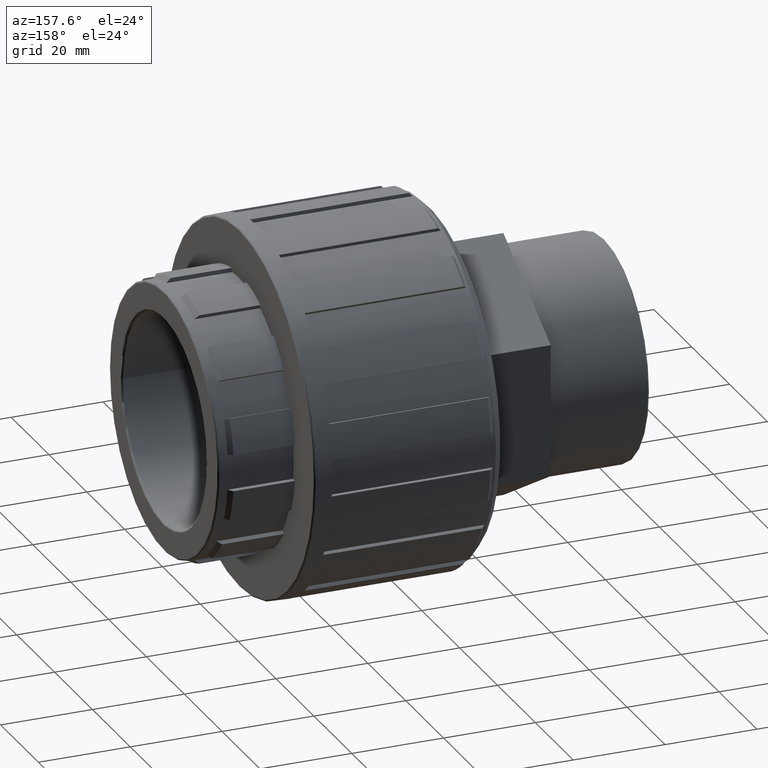
[diagram: clean part render]
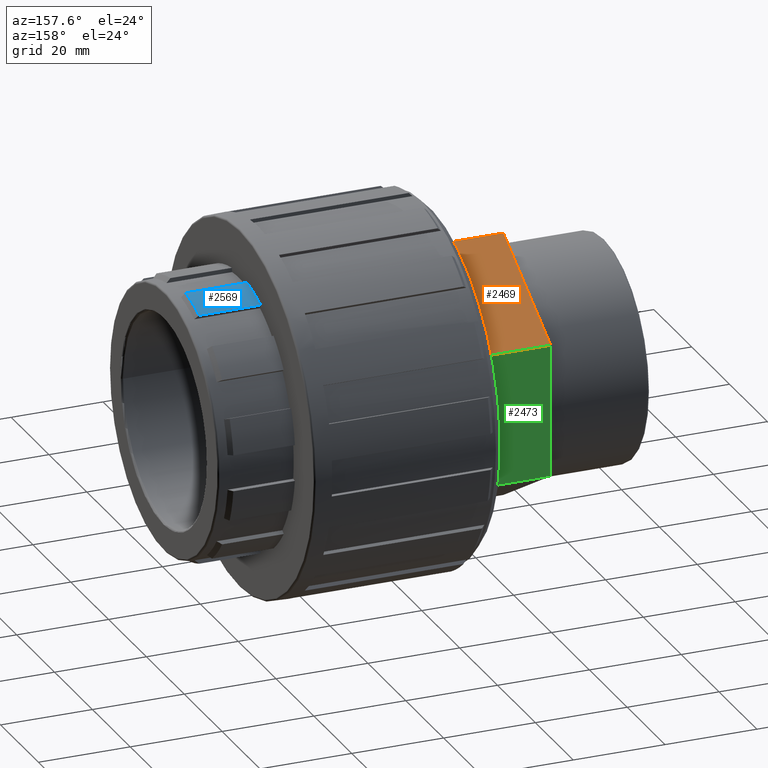
[diagram: same view with three faces highlighted in distinct colors, each labeled with its STEP entity id]
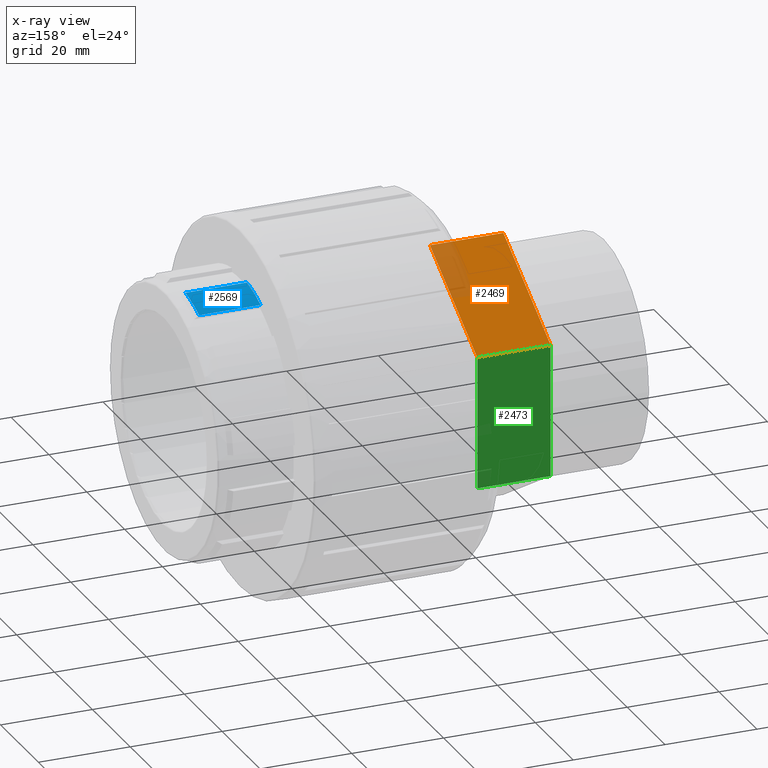
[diagram: x-ray of the same camera — body ghosted, the three highlighted faces saturated]
A machine part, auxiliary view with three faces highlighted in distinct colors.
The next image is the same camera in x-ray (body ghosted, the three faces saturated) — at least one of them is partly hidden behind the body in this view.
Their STEP definitions:

[orange] entity #2469 — the highlighted planar face has unit normal (-0, 0.5, 0.866).
#223=FACE_OUTER_BOUND('',#363,.T.);
#363=EDGE_LOOP('',(#1640,#1641,#1642,#1643));
#525=LINE('',#3673,#767);
#528=LINE('',#3679,#770);
#529=LINE('',#3681,#771);
#530=LINE('',#3682,#772);
#767=VECTOR('',#2886,16.);
#770=VECTOR('',#2891,28.8675134594813);
#771=VECTOR('',#2892,16.);
#772=VECTOR('',#2893,28.8675134594813);
#1008=VERTEX_POINT('',#3669);
#1010=VERTEX_POINT('',#3672);
#1012=VERTEX_POINT('',#3678);
#1013=VERTEX_POINT('',#3680);
#1264=EDGE_CURVE('',#1010,#1008,#525,.T.);
#1267=EDGE_CURVE('',#1012,#1008,#528,.T.);
#1268=EDGE_CURVE('',#1013,#1012,#529,.T.);
#1269=EDGE_CURVE('',#1013,#1010,#530,.T.);
#1640=ORIENTED_EDGE('',*,*,#1267,.F.);
#1641=ORIENTED_EDGE('',*,*,#1268,.F.);
#1642=ORIENTED_EDGE('',*,*,#1269,.T.);
#1643=ORIENTED_EDGE('',*,*,#1264,.T.);
#2383=PLANE('',#2611);
#2469=ADVANCED_FACE('',(#223),#2383,.T.);
#2611=AXIS2_PLACEMENT_3D('',#3677,#2889,#2890);
#2886=DIRECTION('',(1.,1.85037170770859E-16,0.));
#2889=DIRECTION('center_axis',(-9.25185853854296E-17,0.500000000000001,
0.866025403784438));
#2890=DIRECTION('ref_axis',(0.,-0.866025403784438,0.500000000000001));
#2891=DIRECTION('',(1.59086285808736E-16,-0.866025403784438,0.500000000000001));
#2892=DIRECTION('',(1.,1.85037170770859E-16,0.));
#2893=DIRECTION('',(1.59086285808736E-16,-0.866025403784438,0.500000000000001));
#3669=CARTESIAN_POINT('',(-10.,4.78354113859015E-14,28.8675134594813));
#3672=CARTESIAN_POINT('',(-26.,4.48748166535677E-14,28.8675134594813));
#3673=CARTESIAN_POINT('',(-26.,4.48748166535677E-14,28.8675134594813));
#3677=CARTESIAN_POINT('Origin',(-26.,25.,14.4337567297406));
#3678=CARTESIAN_POINT('',(-10.,25.,14.4337567297406));
#3679=CARTESIAN_POINT('',(-10.,9.37500000000005,23.4548546858285));
#3680=CARTESIAN_POINT('',(-26.,25.,14.4337567297406));
#3681=CARTESIAN_POINT('',(-26.,25.,14.4337567297406));
#3682=CARTESIAN_POINT('',(-26.,25.,14.4337567297406));

[blue] entity #2569 — the highlighted cylindrical surface (partial cylindrical patch) has radius 29.5977 mm, axis along (-1, -0, 0).
#82=CYLINDRICAL_SURFACE('',#2795,29.5977);
#175=CIRCLE('',#2796,29.5977);
#176=CIRCLE('',#2797,29.5977);
#323=FACE_OUTER_BOUND('',#464,.T.);
#464=EDGE_LOOP('',(#2101,#2102,#2103,#2104));
#683=LINE('',#4120,#925);
#685=LINE('',#4126,#927);
#925=VECTOR('',#3316,13.4031);
#927=VECTOR('',#3320,13.4031);
#1161=VERTEX_POINT('',#4114);
#1163=VERTEX_POINT('',#4118);
#1164=VERTEX_POINT('',#4122);
#1166=VERTEX_POINT('',#4125);
#1486=EDGE_CURVE('',#1161,#1163,#683,.T.);
#1488=EDGE_CURVE('',#1166,#1164,#685,.T.);
#1581=EDGE_CURVE('',#1166,#1163,#175,.T.);
#1582=EDGE_CURVE('',#1161,#1164,#176,.T.);
#2101=ORIENTED_EDGE('',*,*,#1486,.T.);
#2102=ORIENTED_EDGE('',*,*,#1581,.F.);
#2103=ORIENTED_EDGE('',*,*,#1488,.T.);
#2104=ORIENTED_EDGE('',*,*,#1582,.F.);
#2569=ADVANCED_FACE('',(#323),#82,.T.);
#2795=AXIS2_PLACEMENT_3D('',#4319,#3487,#3488);
#2796=AXIS2_PLACEMENT_3D('',#4320,#3489,#3490);
#2797=AXIS2_PLACEMENT_3D('',#4321,#3491,#3492);
#3316=DIRECTION('',(-1.,-1.83697019872103E-16,0.));
#3320=DIRECTION('',(1.,1.83697019872103E-16,0.));
#3487=DIRECTION('center_axis',(-1.,-1.83697019872103E-16,0.));
#3488=DIRECTION('ref_axis',(1.85799723803972E-16,-1.,0.));
#3489=DIRECTION('center_axis',(-1.,-1.83697019872103E-16,0.));
#3490=DIRECTION('ref_axis',(0.,0.,1.));
#3491=DIRECTION('center_axis',(1.,1.83697019872103E-16,0.));
#3492=DIRECTION('ref_axis',(1.85799723803972E-16,-1.,0.));
#4114=CARTESIAN_POINT('',(44.9031,11.2456694526033,27.3780708570342));
#4118=CARTESIAN_POINT('',(31.5,11.2456694526033,27.3780708570342));
#4120=CARTESIAN_POINT('',(38.65,11.2456694526033,27.3780708570342));
#4122=CARTESIAN_POINT('',(44.9031,3.95000000000001,29.3329395951037));
#4125=CARTESIAN_POINT('',(31.5,3.95000000000001,29.3329395951037));
#4126=CARTESIAN_POINT('',(38.65,3.95000000000001,29.3329395951037));
#4319=CARTESIAN_POINT('Origin',(38.65,1.59173467719177E-14,0.));
#4320=CARTESIAN_POINT('Origin',(31.5,1.46039130798322E-14,0.));
#4321=CARTESIAN_POINT('Origin',(44.9031,1.706602260688E-14,0.));

[green] entity #2473 — the highlighted planar face has unit normal (-0, 1, -0).
#227=FACE_OUTER_BOUND('',#367,.T.);
#367=EDGE_LOOP('',(#1656,#1657,#1658,#1659));
#529=LINE('',#3681,#771);
#534=LINE('',#3691,#776);
#540=LINE('',#3702,#782);
#541=LINE('',#3703,#783);
#771=VECTOR('',#2892,16.);
#776=VECTOR('',#2899,16.);
#782=VECTOR('',#2911,28.8675134594813);
#783=VECTOR('',#2912,28.8675134594813);
#1012=VERTEX_POINT('',#3678);
#1013=VERTEX_POINT('',#3680);
#1015=VERTEX_POINT('',#3685);
#1017=VERTEX_POINT('',#3689);
#1268=EDGE_CURVE('',#1013,#1012,#529,.T.);
#1273=EDGE_CURVE('',#1017,#1015,#534,.T.);
#1279=EDGE_CURVE('',#1015,#1012,#540,.T.);
#1280=EDGE_CURVE('',#1017,#1013,#541,.T.);
#1656=ORIENTED_EDGE('',*,*,#1279,.F.);
#1657=ORIENTED_EDGE('',*,*,#1273,.F.);
#1658=ORIENTED_EDGE('',*,*,#1280,.T.);
#1659=ORIENTED_EDGE('',*,*,#1268,.T.);
#2387=PLANE('',#2615);
#2473=ADVANCED_FACE('',(#227),#2387,.T.);
#2615=AXIS2_PLACEMENT_3D('',#3701,#2909,#2910);
#2892=DIRECTION('',(1.,1.85037170770859E-16,0.));
#2899=DIRECTION('',(1.,1.85037170770859E-16,0.));
#2909=DIRECTION('center_axis',(-1.85037170770859E-16,1.,-1.53837014910685E-15));
#2910=DIRECTION('ref_axis',(0.,1.4210854715202E-15,1.));
#2911=DIRECTION('',(-2.82594011851131E-31,1.53837014910685E-15,1.));
#2912=DIRECTION('',(-2.82594011851131E-31,1.53837014910685E-15,1.));
#3678=CARTESIAN_POINT('',(-10.,25.,14.4337567297406));
#3680=CARTESIAN_POINT('',(-26.,25.,14.4337567297406));
#3681=CARTESIAN_POINT('',(-26.,25.,14.4337567297406));
#3685=CARTESIAN_POINT('',(-10.,25.,-14.4337567297407));
#3689=CARTESIAN_POINT('',(-26.,25.,-14.4337567297407));
#3691=CARTESIAN_POINT('',(-26.,25.,-14.4337567297407));
#3701=CARTESIAN_POINT('Origin',(-26.,25.,-3.77475828372553E-14));
#3702=CARTESIAN_POINT('',(-10.,25.,-5.73330451462989E-14));
#3703=CARTESIAN_POINT('',(-26.,25.,-14.4337567297407));